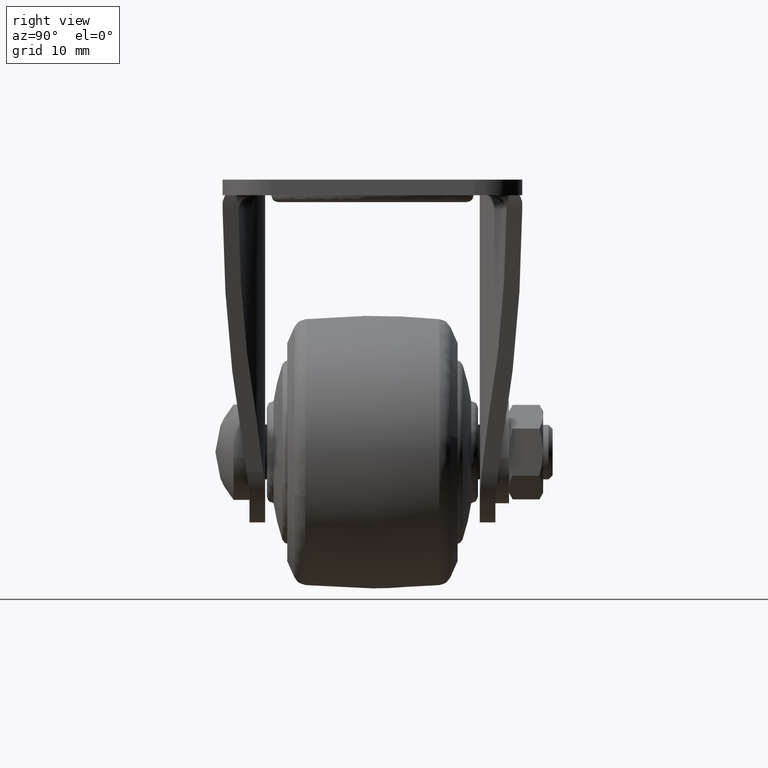
[diagram: clean part render]
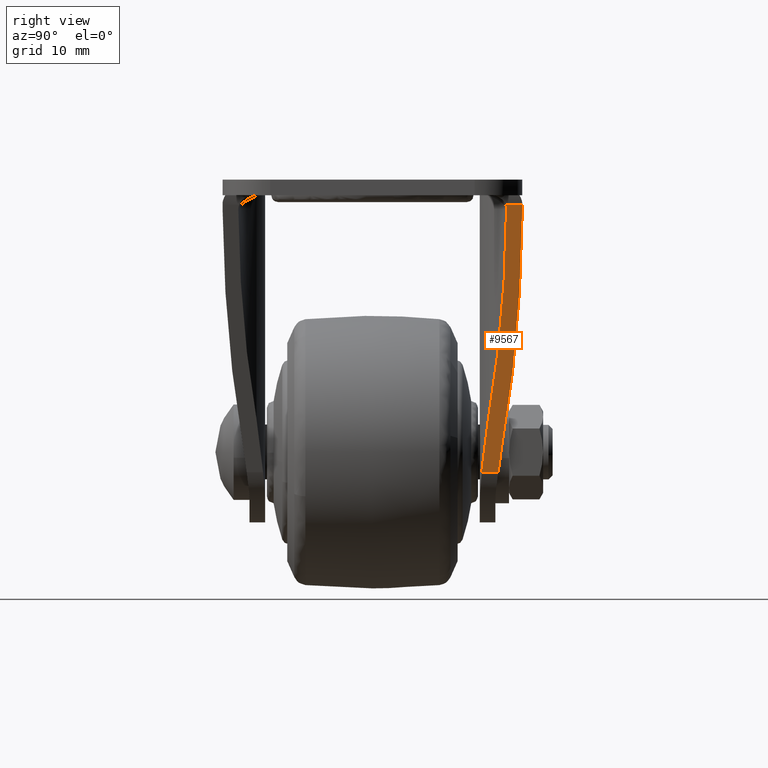
[diagram: same view with one face highlighted and labeled with its STEP entity id]
A machine part, right view. The second image highlights one B-rep face of the part: STEP entity #9567.
In plain terms, the highlighted face is a freeform B-spline surface patch.
Its self-contained STEP definition (entity closure, byte-faithful):
#6601=CARTESIAN_POINT('',(21.346261444899000,21.989972279407599,-4.499999999999940));
#6602=VERTEX_POINT('',#6601);
#6744=CARTESIAN_POINT('',(21.585738364528400,21.995973322268298,-3.694098614803095));
#6745=VERTEX_POINT('',#6744);
#6777=CARTESIAN_POINT('',(21.346261444899000,21.989972279407599,-4.499999999999940));
#6778=CARTESIAN_POINT('',(21.465983044924773,21.993645605614358,-4.097106044924613));
#6779=CARTESIAN_POINT('',(21.585738364528410,21.995973322268291,-3.694098614803098));
#6787=(BOUNDED_CURVE()B_SPLINE_CURVE(2,(#6777,#6778,#6779),.UNSPECIFIED.,.F.,.U.)CURVE()GEOMETRIC_REPRESENTATION_ITEM()QUASI_UNIFORM_CURVE()RATIONAL_B_SPLINE_CURVE((1.0,0.999984214055979,1.0))REPRESENTATION_ITEM(''));
#6788=EDGE_CURVE('',#6602,#6745,#6787,.T.);
#7897=CARTESIAN_POINT('',(21.379622105629000,19.689877114319451,-4.387732802246730));
#7898=VERTEX_POINT('',#7897);
#7908=CARTESIAN_POINT('',(21.585738364528400,19.563381663772251,-3.694098614803060));
#7909=VERTEX_POINT('',#7908);
#7910=CARTESIAN_POINT('',(21.585738364528400,19.563381663772251,-3.694098614803060));
#7911=CARTESIAN_POINT('',(21.484812072200761,19.693190267801391,-4.033741528681813));
#7912=CARTESIAN_POINT('',(21.379622105629000,19.689877114319451,-4.387732802246730));
#7913=QUASI_UNIFORM_CURVE('',2,(#7910,#7911,#7912),.UNSPECIFIED.,.F.,.U.);
#7914=EDGE_CURVE('',#7909,#7898,#7913,.T.);
#7955=CARTESIAN_POINT('',(21.585738364528400,21.995973322268298,-3.694098614803095));
#7956=CARTESIAN_POINT('',(21.585738364528400,19.563381663772251,-3.694098614803060));
#7957=QUASI_UNIFORM_CURVE('',1,(#7955,#7956),.UNSPECIFIED.,.F.,.U.);
#7958=EDGE_CURVE('',#6745,#7909,#7957,.T.);
#9492=CARTESIAN_POINT('',(22.168380142648740,15.750053996139251,-1.733359280142375));
#9493=CARTESIAN_POINT('',(9.338598054899066,15.750053996139251,-44.908873531336774));
#9494=CARTESIAN_POINT('',(22.168380142648740,22.293114925524499,-1.733359280142375));
#9495=CARTESIAN_POINT('',(9.338598054899066,22.293114925524499,-44.908873531336774));
#9496=B_SPLINE_SURFACE_WITH_KNOTS('',1,1,((#9492,#9494),(#9493,#9495)),.UNSPECIFIED.,.F.,.F.,.U.,(2,2),(2,2),(0.0,45.041406941549162),(0.0,6.543060929385247),.UNSPECIFIED.);
#9497=CARTESIAN_POINT('',(11.122622904257639,19.015914637577950,-38.905171381047552));
#9498=VERTEX_POINT('',#9497);
#9499=CARTESIAN_POINT('',(11.122622904257620,19.015914637577950,-38.905171381047573));
#9500=CARTESIAN_POINT('',(15.850913853262615,21.821362735940234,-22.993257066658341));
#9501=CARTESIAN_POINT('',(21.346261444899000,21.989972279407599,-4.499999999999940));
#9509=(BOUNDED_CURVE()B_SPLINE_CURVE(2,(#9499,#9500,#9501),.UNSPECIFIED.,.F.,.U.)CURVE()GEOMETRIC_REPRESENTATION_ITEM()QUASI_UNIFORM_CURVE()RATIONAL_B_SPLINE_CURVE((1.0,0.968312141452404,1.0))REPRESENTATION_ITEM(''));
#9510=EDGE_CURVE('',#9498,#6602,#9509,.T.);
#9511=ORIENTED_EDGE('',*,*,#9510,.T.);
#9512=ORIENTED_EDGE('',*,*,#6788,.T.);
#9513=ORIENTED_EDGE('',*,*,#7958,.T.);
#9514=ORIENTED_EDGE('',*,*,#7914,.T.);
#9515=CARTESIAN_POINT('',(12.296251224727920,17.037886183437301,-34.955610435312259));
#9516=VERTEX_POINT('',#9515);
#9517=CARTESIAN_POINT('',(12.296251224727911,17.037886183437280,-34.955610435312288));
#9518=CARTESIAN_POINT('',(16.497324034079906,19.530518690867535,-20.817920667091375));
#9519=CARTESIAN_POINT('',(21.379622105629000,19.689877114319451,-4.387732802246730));
#9527=(BOUNDED_CURVE()B_SPLINE_CURVE(2,(#9517,#9518,#9519),.UNSPECIFIED.,.F.,.U.)CURVE()GEOMETRIC_REPRESENTATION_ITEM()QUASI_UNIFORM_CURVE()RATIONAL_B_SPLINE_CURVE((1.0,0.968555908155648,1.0))REPRESENTATION_ITEM(''));
#9528=EDGE_CURVE('',#9516,#7898,#9527,.T.);
#9529=ORIENTED_EDGE('',*,*,#9528,.F.);
#9530=CARTESIAN_POINT('',(9.921239207286909,16.047196290816199,-42.948136302426747));
#9531=VERTEX_POINT('',#9530);
#9532=CARTESIAN_POINT('',(12.296251224727961,17.037886183437301,-34.955610435312202));
#9533=CARTESIAN_POINT('',(11.178709888654353,16.374812728368138,-38.716424263008932));
#9534=CARTESIAN_POINT('',(9.921239207286909,16.047196290816199,-42.948136302426747));
#9542=(BOUNDED_CURVE()B_SPLINE_CURVE(2,(#9532,#9533,#9534),.UNSPECIFIED.,.F.,.U.)CURVE()GEOMETRIC_REPRESENTATION_ITEM()QUASI_UNIFORM_CURVE()RATIONAL_B_SPLINE_CURVE((1.0,0.990171829139724,1.0))REPRESENTATION_ITEM(''));
#9543=EDGE_CURVE('',#9516,#9531,#9542,.T.);
#9544=ORIENTED_EDGE('',*,*,#9543,.T.);
#9545=CARTESIAN_POINT('',(9.921239207286909,18.451545269507651,-42.948136302426747));
#9546=VERTEX_POINT('',#9545);
#9547=CARTESIAN_POINT('',(9.921239207286909,18.451545269507651,-42.948136302426747));
#9548=CARTESIAN_POINT('',(9.921239207286909,16.047196290816199,-42.948136302426747));
#9549=QUASI_UNIFORM_CURVE('',1,(#9547,#9548),.UNSPECIFIED.,.F.,.U.);
#9550=EDGE_CURVE('',#9546,#9531,#9549,.T.);
#9551=ORIENTED_EDGE('',*,*,#9550,.F.);
#9552=CARTESIAN_POINT('',(11.122622904257639,19.015914637577950,-38.905171381047552));
#9553=CARTESIAN_POINT('',(10.549199182511030,18.675683778885048,-40.834889586774786));
#9554=CARTESIAN_POINT('',(9.921239207286909,18.451545269507651,-42.948136302426747));
#9562=(BOUNDED_CURVE()B_SPLINE_CURVE(2,(#9552,#9553,#9554),.UNSPECIFIED.,.F.,.U.)CURVE()GEOMETRIC_REPRESENTATION_ITEM()QUASI_UNIFORM_CURVE()RATIONAL_B_SPLINE_CURVE((1.0,0.995363554429998,1.0))REPRESENTATION_ITEM(''));
#9563=EDGE_CURVE('',#9498,#9546,#9562,.T.);
#9564=ORIENTED_EDGE('',*,*,#9563,.F.);
#9565=EDGE_LOOP('',(#9511,#9512,#9513,#9514,#9529,#9544,#9551,#9564));
#9566=FACE_OUTER_BOUND('',#9565,.T.);
#9567=ADVANCED_FACE('',(#9566),#9496,.T.);